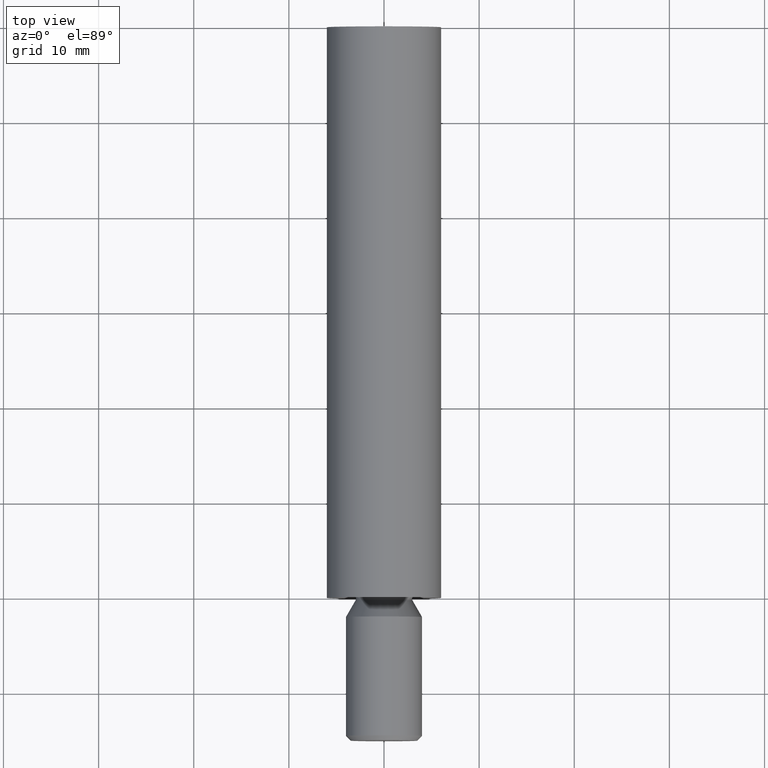
[diagram: clean part render]
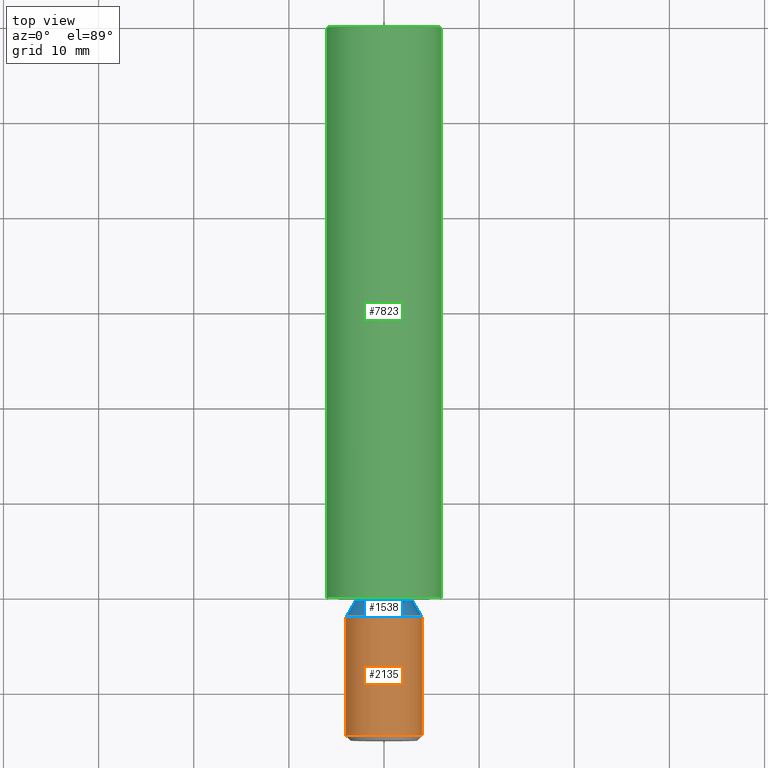
[diagram: same view with three faces highlighted in distinct colors, each labeled with its STEP entity id]
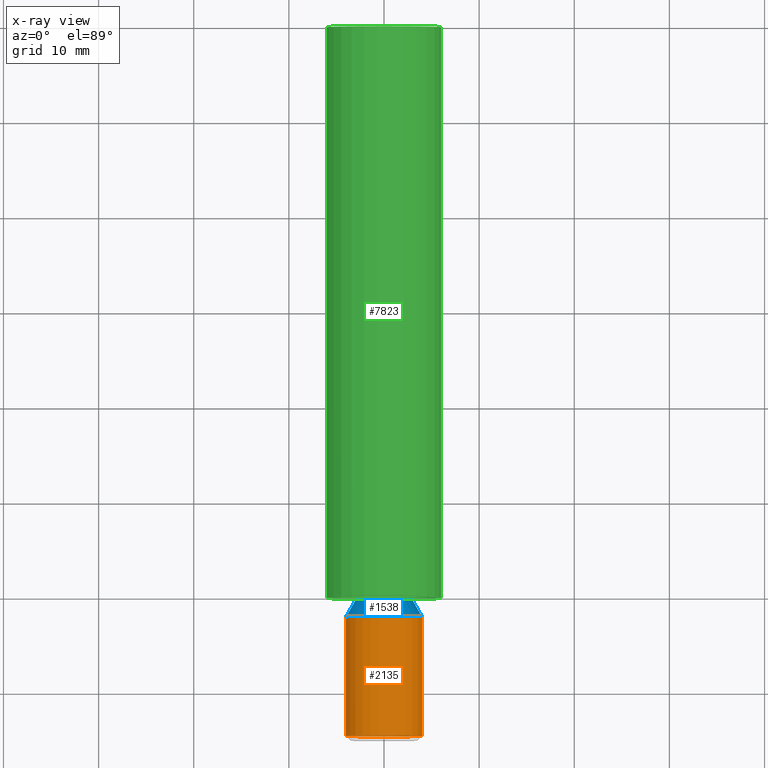
[diagram: x-ray of the same camera — body ghosted, the three highlighted faces saturated]
A machine part, top view with three faces highlighted in distinct colors.
The next image is the same camera in x-ray (body ghosted, the three faces saturated) — at least one of them is partly hidden behind the body in this view.
Their STEP definitions:

[orange] entity #2135 — the highlighted cylindrical surface (bore or boss wall) has radius 4 mm, axis along (0, -1, -0).
#114 = FACE_OUTER_BOUND ( 'NONE', #4377, .T. ) ;
#513 = VERTEX_POINT ( 'NONE', #6786 ) ;
#766 = FACE_OUTER_BOUND ( 'NONE', #9352, .T. ) ;
#889 = EDGE_CURVE ( 'NONE', #3479, #3479, #12158, .T. ) ;
#1343 = CIRCLE ( 'NONE', #2169, 4.000000000000000000 ) ;
#2135 = ADVANCED_FACE ( 'NONE', ( #766, #114 ), #7843, .T. ) ;
#2169 = AXIS2_PLACEMENT_3D ( 'NONE', #8525, #2341, #3265 ) ;
#2341 = DIRECTION ( 'NONE',  ( 2.567906592516314585E-33, -1.000000000000000000, -0.000000000000000000 ) ) ;
#3265 = DIRECTION ( 'NONE',  ( 1.000000000000000000, 0.000000000000000000, 0.000000000000000000 ) ) ;
#3479 = VERTEX_POINT ( 'NONE', #8018 ) ;
#4377 = EDGE_LOOP ( 'NONE', ( #13117 ) ) ;
#4727 = AXIS2_PLACEMENT_3D ( 'NONE', #8304, #6046, #12454 ) ;
#5577 = CARTESIAN_POINT ( 'NONE',  ( 1.925929944387235853E-31, -15.00000000000000000, 0.000000000000000000 ) ) ;
#6046 = DIRECTION ( 'NONE',  ( -2.567906592516310822E-33, 1.000000000000000000, 0.000000000000000000 ) ) ;
#6786 = CARTESIAN_POINT ( 'NONE',  ( 4.000000000000000000, -2.000000000000000000, 0.000000000000000000 ) ) ;
#7843 = CYLINDRICAL_SURFACE ( 'NONE', #11575, 4.000000000000000888 ) ;
#8018 = CARTESIAN_POINT ( 'NONE',  ( 4.000000000000000888, -14.49999999999999467, 0.000000000000000000 ) ) ;
#8304 = CARTESIAN_POINT ( 'NONE',  ( 1.913090411424654135E-31, -14.49999999999999467, 0.000000000000000000 ) ) ;
#8525 = CARTESIAN_POINT ( 'NONE',  ( 1.592102087360114899E-31, -2.000000000000000000, 0.000000000000000000 ) ) ;
#9352 = EDGE_LOOP ( 'NONE', ( #9501 ) ) ;
#9501 = ORIENTED_EDGE ( 'NONE', *, *, #889, .T. ) ;
#9724 = DIRECTION ( 'NONE',  ( 2.567906592516314585E-33, -1.000000000000000000, -0.000000000000000000 ) ) ;
#10866 = DIRECTION ( 'NONE',  ( 1.000000000000000000, 0.000000000000000000, 0.000000000000000000 ) ) ;
#11575 = AXIS2_PLACEMENT_3D ( 'NONE', #5577, #9724, #10866 ) ;
#12158 = CIRCLE ( 'NONE', #4727, 4.000000000000000888 ) ;
#12260 = EDGE_CURVE ( 'NONE', #513, #513, #1343, .T. ) ;
#12454 = DIRECTION ( 'NONE',  ( 1.000000000000000000, 0.000000000000000000, 0.000000000000000000 ) ) ;
#13117 = ORIENTED_EDGE ( 'NONE', *, *, #12260, .T. ) ;

[blue] entity #1538 — the highlighted conical surface has half-angle 30 deg.
#394 = EDGE_LOOP ( 'NONE', ( #6511 ) ) ;
#513 = VERTEX_POINT ( 'NONE', #6786 ) ;
#1176 = EDGE_LOOP ( 'NONE', ( #11074 ) ) ;
#1343 = CIRCLE ( 'NONE', #2169, 4.000000000000000000 ) ;
#1538 = ADVANCED_FACE ( 'NONE', ( #2565, #12954 ), #4711, .T. ) ;
#2169 = AXIS2_PLACEMENT_3D ( 'NONE', #8525, #2341, #3265 ) ;
#2341 = DIRECTION ( 'NONE',  ( 2.567906592516314585E-33, -1.000000000000000000, -0.000000000000000000 ) ) ;
#2565 = FACE_BOUND ( 'NONE', #1176, .T. ) ;
#2640 = CARTESIAN_POINT ( 'NONE',  ( 1.592102087360114899E-31, -2.000000000000000000, 0.000000000000000000 ) ) ;
#3265 = DIRECTION ( 'NONE',  ( 1.000000000000000000, 0.000000000000000000, 0.000000000000000000 ) ) ;
#4095 = DIRECTION ( 'NONE',  ( 2.567906592516314585E-33, -1.000000000000000000, -0.000000000000000000 ) ) ;
#4711 = CONICAL_SURFACE ( 'NONE', #10898, 4.000000000000000000, 0.5235987755983007030 ) ;
#6050 = EDGE_CURVE ( 'NONE', #10547, #10547, #10533, .T. ) ;
#6511 = ORIENTED_EDGE ( 'NONE', *, *, #12260, .F. ) ;
#6786 = CARTESIAN_POINT ( 'NONE',  ( 4.000000000000000000, -2.000000000000000000, 0.000000000000000000 ) ) ;
#7331 = DIRECTION ( 'NONE',  ( 1.000000000000000000, 0.000000000000000000, 0.000000000000000000 ) ) ;
#7923 = CARTESIAN_POINT ( 'NONE',  ( 3.000000000000000000, -0.2679491924311300233, 0.000000000000000000 ) ) ;
#8031 = DIRECTION ( 'NONE',  ( 1.000000000000000000, 0.000000000000000000, 0.000000000000000000 ) ) ;
#8062 = AXIS2_PLACEMENT_3D ( 'NONE', #13609, #4095, #7331 ) ;
#8117 = DIRECTION ( 'NONE',  ( 2.567906592516314585E-33, -1.000000000000000000, -0.000000000000000000 ) ) ;
#8525 = CARTESIAN_POINT ( 'NONE',  ( 1.592102087360114899E-31, -2.000000000000000000, 0.000000000000000000 ) ) ;
#10533 = CIRCLE ( 'NONE', #8062, 3.000000000000000000 ) ;
#10547 = VERTEX_POINT ( 'NONE', #7923 ) ;
#10898 = AXIS2_PLACEMENT_3D ( 'NONE', #2640, #8117, #8031 ) ;
#11074 = ORIENTED_EDGE ( 'NONE', *, *, #6050, .T. ) ;
#12260 = EDGE_CURVE ( 'NONE', #513, #513, #1343, .T. ) ;
#12954 = FACE_OUTER_BOUND ( 'NONE', #394, .T. ) ;
#13609 = CARTESIAN_POINT ( 'NONE',  ( 1.547624640486821658E-31, -0.2679491924311300233, 0.000000000000000000 ) ) ;

[green] entity #7823 — the highlighted cylindrical surface (bore or boss wall) has radius 6 mm, axis along (0, -1, -0).
#393 = FACE_OUTER_BOUND ( 'NONE', #4594, .T. ) ;
#596 = EDGE_CURVE ( 'NONE', #6096, #6096, #2742, .T. ) ;
#918 = DIRECTION ( 'NONE',  ( 1.000000000000000000, 0.000000000000000000, 0.000000000000000000 ) ) ;
#1388 = DIRECTION ( 'NONE',  ( 2.567906592516314585E-33, -1.000000000000000000, -0.000000000000000000 ) ) ;
#1905 = ORIENTED_EDGE ( 'NONE', *, *, #10367, .T. ) ;
#2246 = CARTESIAN_POINT ( 'NONE',  ( 1.925929944387235853E-31, -15.00000000000000000, 0.000000000000000000 ) ) ;
#2742 = CIRCLE ( 'NONE', #13307, 6.000000000000009770 ) ;
#3998 = DIRECTION ( 'NONE',  ( 2.567906592516314585E-33, -1.000000000000000000, -0.000000000000000000 ) ) ;
#4257 = ORIENTED_EDGE ( 'NONE', *, *, #596, .F. ) ;
#4594 = EDGE_LOOP ( 'NONE', ( #4257 ) ) ;
#4861 = AXIS2_PLACEMENT_3D ( 'NONE', #13639, #3998, #918 ) ;
#5503 = AXIS2_PLACEMENT_3D ( 'NONE', #2246, #1388, #9618 ) ;
#6096 = VERTEX_POINT ( 'NONE', #10152 ) ;
#6945 = CIRCLE ( 'NONE', #4861, 5.999999999999999112 ) ;
#7823 = ADVANCED_FACE ( 'NONE', ( #8804, #393 ), #9120, .T. ) ;
#8055 = EDGE_LOOP ( 'NONE', ( #1905 ) ) ;
#8768 = VERTEX_POINT ( 'NONE', #11206 ) ;
#8804 = FACE_OUTER_BOUND ( 'NONE', #8055, .T. ) ;
#9120 = CYLINDRICAL_SURFACE ( 'NONE', #5503, 6.000000000000004441 ) ;
#9557 = DIRECTION ( 'NONE',  ( 1.000000000000000000, 2.567906592516314243E-33, 0.000000000000000000 ) ) ;
#9618 = DIRECTION ( 'NONE',  ( 1.000000000000000000, 0.000000000000000000, 0.000000000000000000 ) ) ;
#10152 = CARTESIAN_POINT ( 'NONE',  ( 6.000000000000009770, 1.540743955509791146E-32, 0.000000000000000000 ) ) ;
#10367 = EDGE_CURVE ( 'NONE', #8768, #8768, #6945, .T. ) ;
#10704 = DIRECTION ( 'NONE',  ( 2.567906592516314585E-33, -1.000000000000000000, -0.000000000000000000 ) ) ;
#11206 = CARTESIAN_POINT ( 'NONE',  ( 5.999999999999999112, 60.00000000000000000, 0.000000000000000000 ) ) ;
#12916 = CARTESIAN_POINT ( 'NONE',  ( 1.540743955509788682E-31, 0.000000000000000000, 0.000000000000000000 ) ) ;
#13307 = AXIS2_PLACEMENT_3D ( 'NONE', #12916, #10704, #9557 ) ;
#13639 = CARTESIAN_POINT ( 'NONE',  ( 0.000000000000000000, 60.00000000000000000, 0.000000000000000000 ) ) ;